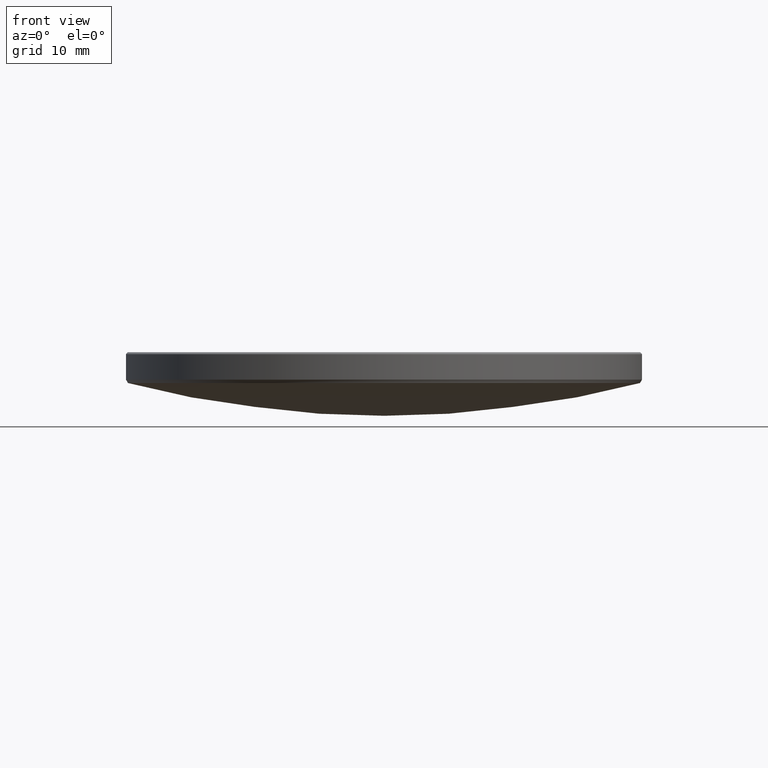
[diagram: clean part render]
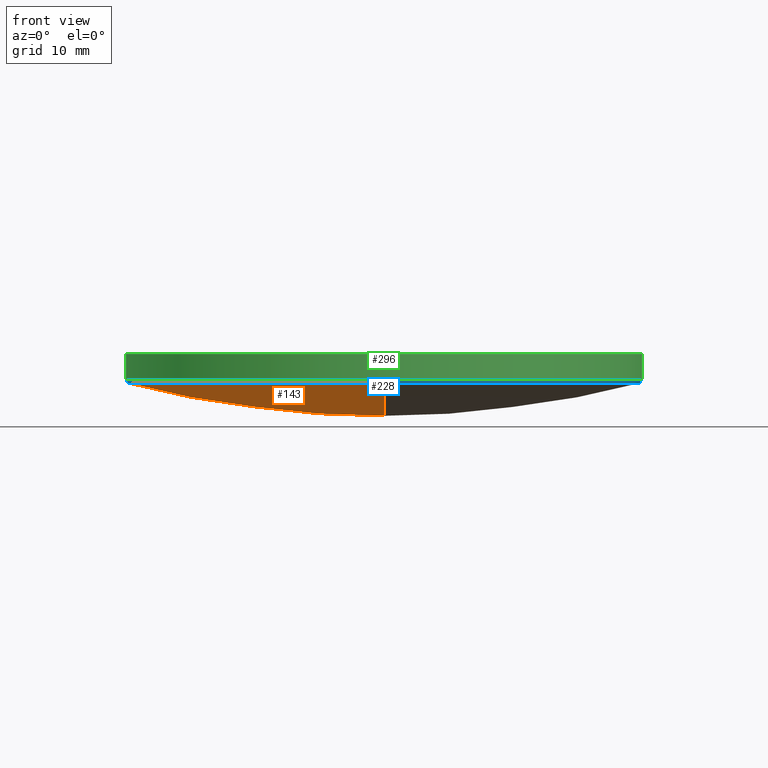
[diagram: same view with three faces highlighted in distinct colors, each labeled with its STEP entity id]
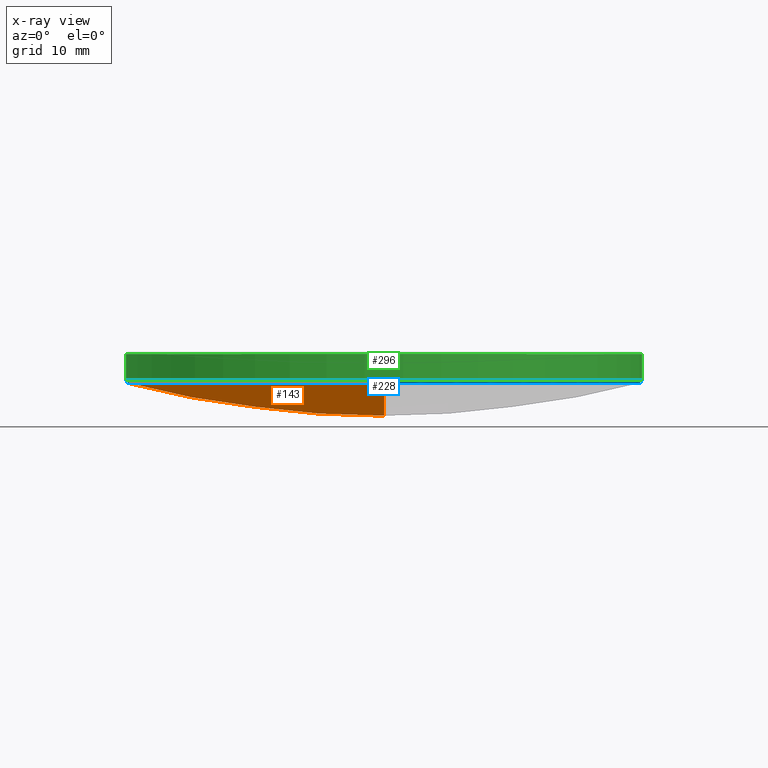
[diagram: x-ray of the same camera — body ghosted, the three highlighted faces saturated]
A machine part, front view with three faces highlighted in distinct colors.
The next image is the same camera in x-ray (body ghosted, the three faces saturated) — at least one of them is partly hidden behind the body in this view.
Their STEP definitions:

[orange] entity #143 — the highlighted spherical surface has radius 100.08 mm.
#18 = VERTEX_POINT ( 'NONE', #206 ) ;
#26 = AXIS2_PLACEMENT_3D ( 'NONE', #317, #133, #134 ) ;
#30 = ORIENTED_EDGE ( 'NONE', *, *, #321, .T. ) ;
#47 = VERTEX_POINT ( 'NONE', #52 ) ;
#49 = ORIENTED_EDGE ( 'NONE', *, *, #204, .F. ) ;
#52 = CARTESIAN_POINT ( 'NONE',  ( -25.20669079081242003, 3.098766094620413518E-15, 12.94948413701273182 ) ) ;
#55 = FACE_OUTER_BOUND ( 'NONE', #262, .T. ) ;
#77 = AXIS2_PLACEMENT_3D ( 'NONE', #167, #328, #93 ) ;
#80 = DIRECTION ( 'NONE',  ( 1.000000000000000000, 0.000000000000000000, 0.000000000000000000 ) ) ;
#81 = CIRCLE ( 'NONE', #316, 25.20669079081241648 ) ;
#87 = VERTEX_POINT ( 'NONE', #295 ) ;
#93 = DIRECTION ( 'NONE',  ( 1.000000000000000000, 0.000000000000000000, 0.000000000000000000 ) ) ;
#100 = ORIENTED_EDGE ( 'NONE', *, *, #136, .T. ) ;
#112 = CARTESIAN_POINT ( 'NONE',  ( -3.086929319406547016E-15, -25.20669079081240582, 12.94948413701272472 ) ) ;
#122 = DIRECTION ( 'NONE',  ( -1.000000000000000000, 1.224646799147353207E-16, 0.000000000000000000 ) ) ;
#126 = DIRECTION ( 'NONE',  ( 1.000000000000000000, -0.000000000000000000, 0.000000000000000000 ) ) ;
#133 = DIRECTION ( 'NONE',  ( -1.000000000000000000, 0.000000000000000000, 0.000000000000000000 ) ) ;
#134 = DIRECTION ( 'NONE',  ( 0.000000000000000000, 1.000000000000000000, 0.000000000000000000 ) ) ;
#136 = EDGE_CURVE ( 'NONE', #47, #18, #81, .T. ) ;
#143 = ADVANCED_FACE ( 'NONE', ( #55 ), #293, .T. ) ;
#145 = CARTESIAN_POINT ( 'NONE',  ( 0.000000000000000000, 0.000000000000000000, 109.8031321807306142 ) ) ;
#167 = CARTESIAN_POINT ( 'NONE',  ( 0.000000000000000000, 0.000000000000000000, 12.94948413701273182 ) ) ;
#174 = VERTEX_POINT ( 'NONE', #112 ) ;
#177 = CIRCLE ( 'NONE', #77, 25.20669079081241648 ) ;
#195 = CIRCLE ( 'NONE', #219, 100.0800000000000125 ) ;
#201 = DIRECTION ( 'NONE',  ( -1.224646799147353207E-16, -1.000000000000000000, 0.000000000000000000 ) ) ;
#204 = EDGE_CURVE ( 'NONE', #87, #18, #261, .T. ) ;
#206 = CARTESIAN_POINT ( 'NONE',  ( 0.000000000000000000, 25.20669079081240582, 12.94948413701272472 ) ) ;
#217 = AXIS2_PLACEMENT_3D ( 'NONE', #243, #126, #284 ) ;
#218 = DIRECTION ( 'NONE',  ( 0.000000000000000000, 0.000000000000000000, -1.000000000000000000 ) ) ;
#219 = AXIS2_PLACEMENT_3D ( 'NONE', #145, #122, #201 ) ;
#243 = CARTESIAN_POINT ( 'NONE',  ( 0.000000000000000000, 0.000000000000000000, 109.8031321807306142 ) ) ;
#251 = ORIENTED_EDGE ( 'NONE', *, *, #327, .T. ) ;
#261 = CIRCLE ( 'NONE', #217, 100.0800000000000125 ) ;
#262 = EDGE_LOOP ( 'NONE', ( #49, #251, #30, #100 ) ) ;
#284 = DIRECTION ( 'NONE',  ( 0.000000000000000000, 0.000000000000000000, -1.000000000000000000 ) ) ;
#293 = SPHERICAL_SURFACE ( 'NONE', #26, 100.0800000000000125 ) ;
#295 = CARTESIAN_POINT ( 'NONE',  ( 0.000000000000000000, 6.128132582933356375E-15, 9.723132180730592822 ) ) ;
#298 = CARTESIAN_POINT ( 'NONE',  ( 0.000000000000000000, 0.000000000000000000, 12.94948413701273182 ) ) ;
#316 = AXIS2_PLACEMENT_3D ( 'NONE', #298, #218, #80 ) ;
#317 = CARTESIAN_POINT ( 'NONE',  ( 0.000000000000000000, 0.000000000000000000, 109.8031321807306142 ) ) ;
#321 = EDGE_CURVE ( 'NONE', #174, #47, #177, .T. ) ;
#327 = EDGE_CURVE ( 'NONE', #87, #174, #195, .T. ) ;
#328 = DIRECTION ( 'NONE',  ( 0.000000000000000000, 0.000000000000000000, -1.000000000000000000 ) ) ;

[blue] entity #228 — the highlighted conical surface has half-angle 30.298 deg.
#4 = LINE ( 'NONE', #318, #110 ) ;
#32 = CARTESIAN_POINT ( 'NONE',  ( -25.39999999999999858, 0.000000000000000000, 13.28032383718598375 ) ) ;
#46 = LINE ( 'NONE', #207, #172 ) ;
#47 = VERTEX_POINT ( 'NONE', #52 ) ;
#51 = EDGE_CURVE ( 'NONE', #192, #253, #4, .T. ) ;
#52 = CARTESIAN_POINT ( 'NONE',  ( -25.20669079081242003, 3.098766094620413518E-15, 12.94948413701273182 ) ) ;
#53 = CIRCLE ( 'NONE', #289, 25.39999999999999858 ) ;
#54 = ORIENTED_EDGE ( 'NONE', *, *, #211, .F. ) ;
#66 = EDGE_CURVE ( 'NONE', #192, #174, #191, .T. ) ;
#71 = CONICAL_SURFACE ( 'NONE', #310, 25.39999999999999858, 0.5287944249354518123 ) ;
#72 = CARTESIAN_POINT ( 'NONE',  ( 0.000000000000000000, 0.000000000000000000, 13.28032383718598375 ) ) ;
#77 = AXIS2_PLACEMENT_3D ( 'NONE', #167, #328, #93 ) ;
#82 = CARTESIAN_POINT ( 'NONE',  ( 0.000000000000000000, 0.000000000000000000, 12.94948413701273182 ) ) ;
#88 = AXIS2_PLACEMENT_3D ( 'NONE', #82, #194, #91 ) ;
#91 = DIRECTION ( 'NONE',  ( 1.000000000000000000, 0.000000000000000000, 0.000000000000000000 ) ) ;
#93 = DIRECTION ( 'NONE',  ( 1.000000000000000000, 0.000000000000000000, 0.000000000000000000 ) ) ;
#110 = VECTOR ( 'NONE', #240, 1000.000000000000000 ) ;
#112 = CARTESIAN_POINT ( 'NONE',  ( -3.086929319406547016E-15, -25.20669079081240582, 12.94948413701272472 ) ) ;
#137 = CARTESIAN_POINT ( 'NONE',  ( 25.20669079081242003, 0.000000000000000000, 12.94948413701273182 ) ) ;
#150 = DIRECTION ( 'NONE',  ( -0.000000000000000000, -0.000000000000000000, 1.000000000000000000 ) ) ;
#153 = FACE_OUTER_BOUND ( 'NONE', #183, .T. ) ;
#167 = CARTESIAN_POINT ( 'NONE',  ( 0.000000000000000000, 0.000000000000000000, 12.94948413701273182 ) ) ;
#172 = VECTOR ( 'NONE', #308, 1000.000000000000000 ) ;
#174 = VERTEX_POINT ( 'NONE', #112 ) ;
#177 = CIRCLE ( 'NONE', #77, 25.20669079081241648 ) ;
#181 = DIRECTION ( 'NONE',  ( -0.000000000000000000, -0.000000000000000000, 1.000000000000000000 ) ) ;
#183 = EDGE_LOOP ( 'NONE', ( #54, #294, #229, #203, #234 ) ) ;
#191 = CIRCLE ( 'NONE', #88, 25.20669079081241648 ) ;
#192 = VERTEX_POINT ( 'NONE', #137 ) ;
#194 = DIRECTION ( 'NONE',  ( 0.000000000000000000, 0.000000000000000000, -1.000000000000000000 ) ) ;
#203 = ORIENTED_EDGE ( 'NONE', *, *, #51, .T. ) ;
#205 = CARTESIAN_POINT ( 'NONE',  ( 25.39999999999999858, 3.110602869834276865E-15, 13.28032383718598375 ) ) ;
#207 = CARTESIAN_POINT ( 'NONE',  ( -25.39999999999999858, 3.110602869834276865E-15, 13.28032383718598375 ) ) ;
#211 = EDGE_CURVE ( 'NONE', #47, #277, #46, .T. ) ;
#228 = ADVANCED_FACE ( 'NONE', ( #153 ), #71, .T. ) ;
#229 = ORIENTED_EDGE ( 'NONE', *, *, #66, .F. ) ;
#234 = ORIENTED_EDGE ( 'NONE', *, *, #301, .F. ) ;
#240 = DIRECTION ( 'NONE',  ( 0.5044927953932116793, 0.000000000000000000, 0.8634159017509134282 ) ) ;
#253 = VERTEX_POINT ( 'NONE', #205 ) ;
#274 = CARTESIAN_POINT ( 'NONE',  ( 0.000000000000000000, 0.000000000000000000, 13.28032383718598375 ) ) ;
#277 = VERTEX_POINT ( 'NONE', #32 ) ;
#289 = AXIS2_PLACEMENT_3D ( 'NONE', #274, #150, #326 ) ;
#294 = ORIENTED_EDGE ( 'NONE', *, *, #321, .F. ) ;
#301 = EDGE_CURVE ( 'NONE', #277, #253, #53, .T. ) ;
#308 = DIRECTION ( 'NONE',  ( -0.5044927953932116793, 6.178254870711972724E-17, 0.8634159017509134282 ) ) ;
#310 = AXIS2_PLACEMENT_3D ( 'NONE', #72, #181, #330 ) ;
#318 = CARTESIAN_POINT ( 'NONE',  ( 25.39999999999999858, 0.000000000000000000, 13.28032383718598375 ) ) ;
#321 = EDGE_CURVE ( 'NONE', #174, #47, #177, .T. ) ;
#326 = DIRECTION ( 'NONE',  ( -1.000000000000000000, 0.000000000000000000, 0.000000000000000000 ) ) ;
#328 = DIRECTION ( 'NONE',  ( 0.000000000000000000, 0.000000000000000000, -1.000000000000000000 ) ) ;
#330 = DIRECTION ( 'NONE',  ( 1.000000000000000000, 0.000000000000000000, 0.000000000000000000 ) ) ;

[green] entity #296 — the highlighted cylindrical surface (partial cylindrical patch) has radius 25.4 mm, axis along (-0, -0, -1).
#32 = CARTESIAN_POINT ( 'NONE',  ( -25.39999999999999858, 0.000000000000000000, 13.28032383718598375 ) ) ;
#35 = CARTESIAN_POINT ( 'NONE',  ( 25.39999999999999858, 3.110602869834276865E-15, 20.00000000000000000 ) ) ;
#40 = LINE ( 'NONE', #35, #220 ) ;
#43 = DIRECTION ( 'NONE',  ( -0.000000000000000000, -0.000000000000000000, -1.000000000000000000 ) ) ;
#53 = CIRCLE ( 'NONE', #289, 25.39999999999999858 ) ;
#57 = DIRECTION ( 'NONE',  ( 0.000000000000000000, 0.000000000000000000, -1.000000000000000000 ) ) ;
#58 = AXIS2_PLACEMENT_3D ( 'NONE', #92, #57, #165 ) ;
#60 = DIRECTION ( 'NONE',  ( -0.000000000000000000, -0.000000000000000000, -1.000000000000000000 ) ) ;
#63 = VECTOR ( 'NONE', #60, 1000.000000000000000 ) ;
#74 = EDGE_LOOP ( 'NONE', ( #152, #287, #185, #123 ) ) ;
#78 = VERTEX_POINT ( 'NONE', #224 ) ;
#92 = CARTESIAN_POINT ( 'NONE',  ( 0.000000000000000000, 0.000000000000000000, 15.79999999999998117 ) ) ;
#97 = EDGE_CURVE ( 'NONE', #78, #197, #129, .T. ) ;
#123 = ORIENTED_EDGE ( 'NONE', *, *, #301, .T. ) ;
#129 = CIRCLE ( 'NONE', #58, 25.39999999999999858 ) ;
#148 = DIRECTION ( 'NONE',  ( -0.000000000000000000, -0.000000000000000000, -1.000000000000000000 ) ) ;
#150 = DIRECTION ( 'NONE',  ( -0.000000000000000000, -0.000000000000000000, 1.000000000000000000 ) ) ;
#152 = ORIENTED_EDGE ( 'NONE', *, *, #239, .F. ) ;
#165 = DIRECTION ( 'NONE',  ( 1.000000000000000000, 0.000000000000000000, 0.000000000000000000 ) ) ;
#178 = LINE ( 'NONE', #252, #63 ) ;
#185 = ORIENTED_EDGE ( 'NONE', *, *, #236, .T. ) ;
#197 = VERTEX_POINT ( 'NONE', #268 ) ;
#205 = CARTESIAN_POINT ( 'NONE',  ( 25.39999999999999858, 3.110602869834276865E-15, 13.28032383718598375 ) ) ;
#220 = VECTOR ( 'NONE', #148, 1000.000000000000000 ) ;
#223 = CARTESIAN_POINT ( 'NONE',  ( 0.000000000000000000, 0.000000000000000000, 20.00000000000000000 ) ) ;
#224 = CARTESIAN_POINT ( 'NONE',  ( 25.39999999999999858, 3.110602869834276865E-15, 15.79999999999998117 ) ) ;
#225 = FACE_OUTER_BOUND ( 'NONE', #74, .T. ) ;
#236 = EDGE_CURVE ( 'NONE', #197, #277, #178, .T. ) ;
#239 = EDGE_CURVE ( 'NONE', #78, #253, #40, .T. ) ;
#252 = CARTESIAN_POINT ( 'NONE',  ( -25.39999999999999858, 0.000000000000000000, 20.00000000000000000 ) ) ;
#253 = VERTEX_POINT ( 'NONE', #205 ) ;
#268 = CARTESIAN_POINT ( 'NONE',  ( -25.39999999999999858, 0.000000000000000000, 15.79999999999998117 ) ) ;
#270 = DIRECTION ( 'NONE',  ( -1.000000000000000000, 0.000000000000000000, 0.000000000000000000 ) ) ;
#274 = CARTESIAN_POINT ( 'NONE',  ( 0.000000000000000000, 0.000000000000000000, 13.28032383718598375 ) ) ;
#277 = VERTEX_POINT ( 'NONE', #32 ) ;
#280 = CYLINDRICAL_SURFACE ( 'NONE', #314, 25.39999999999999858 ) ;
#287 = ORIENTED_EDGE ( 'NONE', *, *, #97, .T. ) ;
#289 = AXIS2_PLACEMENT_3D ( 'NONE', #274, #150, #326 ) ;
#296 = ADVANCED_FACE ( 'NONE', ( #225 ), #280, .T. ) ;
#301 = EDGE_CURVE ( 'NONE', #277, #253, #53, .T. ) ;
#314 = AXIS2_PLACEMENT_3D ( 'NONE', #223, #43, #270 ) ;
#326 = DIRECTION ( 'NONE',  ( -1.000000000000000000, 0.000000000000000000, 0.000000000000000000 ) ) ;